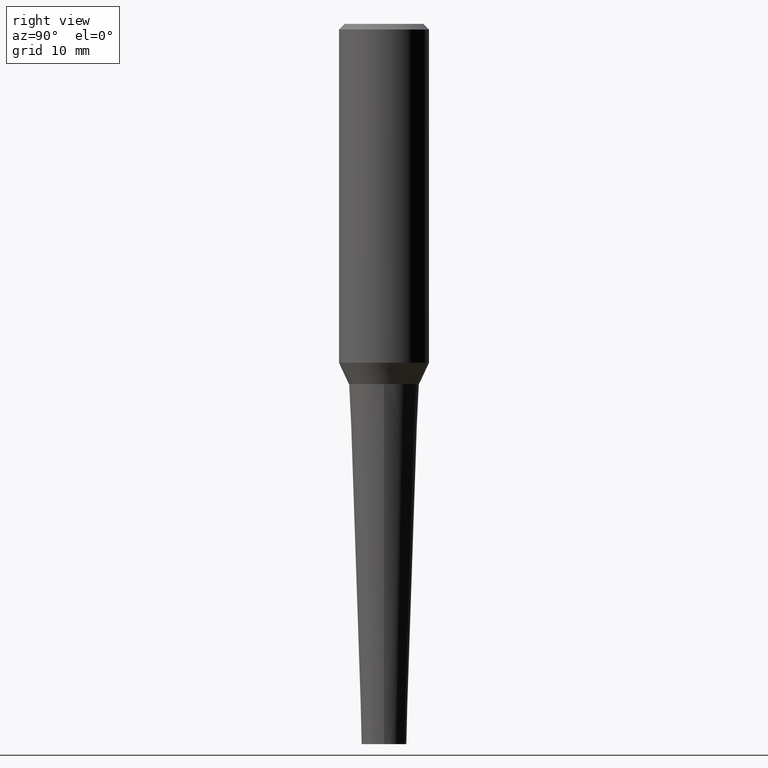
[diagram: clean part render]
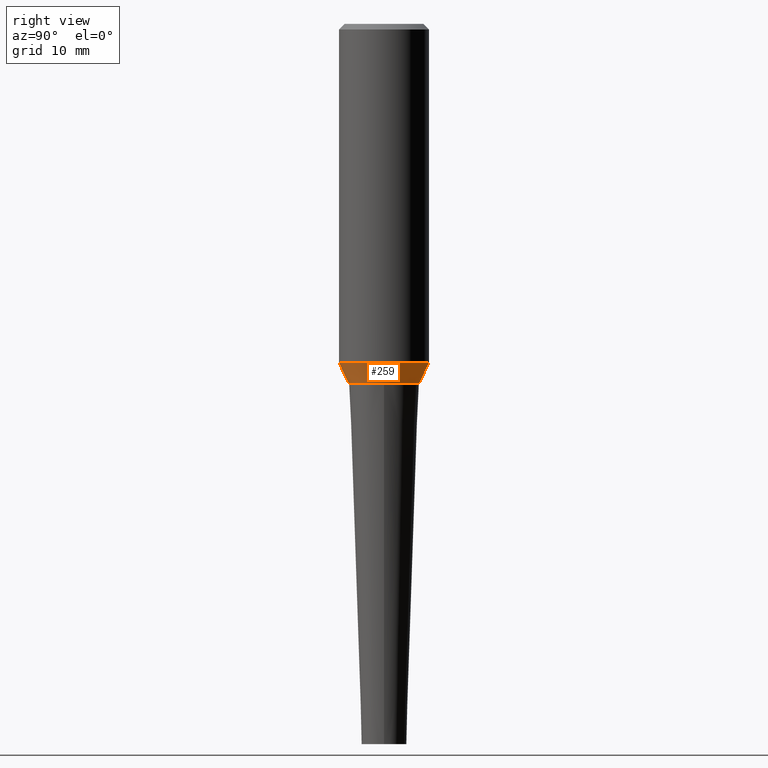
[diagram: same view with one face highlighted and labeled with its STEP entity id]
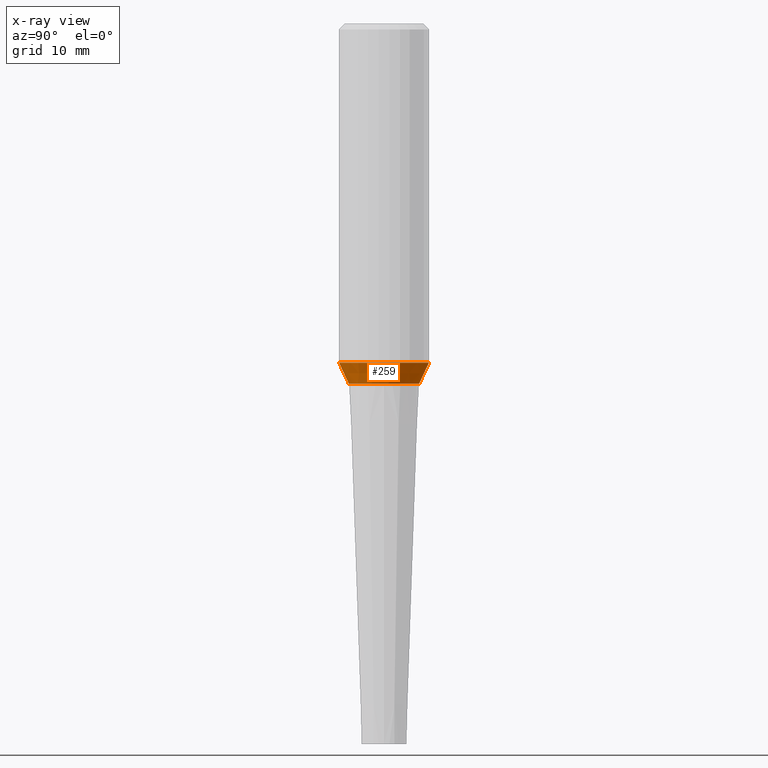
[diagram: x-ray of the same camera — body ghosted, the highlighted face saturated]
A machine part, right view. The second image highlights one B-rep face of the part: STEP entity #259.
The next image is the same camera in x-ray: the body ghosted, the highlighted face saturated — about 0% of this face is hidden behind the body in this view.
In plain terms, the highlighted conical surface has half-angle 25 deg.
Its self-contained STEP definition (entity closure, byte-faithful):
#1 = VERTEX_POINT ( 'NONE', #354 ) ;
#3 = DIRECTION ( 'NONE',  ( -6.982962677686265922E-15, -1.000000000000000000, 2.797900717145328369E-15 ) ) ;
#7 = EDGE_CURVE ( 'NONE', #1, #223, #412, .T. ) ;
#23 = DIRECTION ( 'NONE',  ( -2.651392540956904653E-29, 3.196586830198859134E-15, 1.000000000000000000 ) ) ;
#42 = CIRCLE ( 'NONE', #234, 0.1952784083383446168 ) ;
#53 = EDGE_CURVE ( 'NONE', #1, #68, #42, .T. ) ;
#65 = DIRECTION ( 'NONE',  ( -6.982962677686265922E-15, -1.000000000000000000, 3.278217592397117045E-15 ) ) ;
#68 = VERTEX_POINT ( 'NONE', #182 ) ;
#69 = DIRECTION ( 'NONE',  ( -2.651392540956904653E-29, 3.196586830198859134E-15, 1.000000000000000000 ) ) ;
#82 = CARTESIAN_POINT ( 'NONE',  ( 4.960502830647732035E-29, -6.876789300027791959E-15, -1.999063130645136521 ) ) ;
#104 = ORIENTED_EDGE ( 'NONE', *, *, #7, .F. ) ;
#136 = LINE ( 'NONE', #353, #142 ) ;
#142 = VECTOR ( 'NONE', #260, 39.37007874015748854 ) ;
#182 = CARTESIAN_POINT ( 'NONE',  ( 1.387536544956102545E-15, 0.1952784083383376779, -1.999063130645136965 ) ) ;
#184 = VECTOR ( 'NONE', #188, 39.37007874015748143 ) ;
#188 = DIRECTION ( 'NONE',  ( -2.951127548643988277E-15, -0.4226182617406985531, 0.9063077870366502697 ) ) ;
#210 = ORIENTED_EDGE ( 'NONE', *, *, #213, .T. ) ;
#213 = EDGE_CURVE ( 'NONE', #68, #287, #136, .T. ) ;
#223 = VERTEX_POINT ( 'NONE', #379 ) ;
#229 = AXIS2_PLACEMENT_3D ( 'NONE', #262, #69, #3 ) ;
#232 = CARTESIAN_POINT ( 'NONE',  ( 1.776356839400272947E-15, 0.2499999999999934497, -1.881712298625419999 ) ) ;
#234 = AXIS2_PLACEMENT_3D ( 'NONE', #82, #281, #250 ) ;
#250 = DIRECTION ( 'NONE',  ( -6.982962677686265922E-15, -1.000000000000000000, 2.797900717145328369E-15 ) ) ;
#251 = EDGE_CURVE ( 'NONE', #223, #287, #351, .T. ) ;
#259 = ADVANCED_FACE ( 'NONE', ( #297 ), #328, .T. ) ;
#260 = DIRECTION ( 'NONE',  ( 3.002883358794135962E-15, 0.4226182617407042708, 0.9063077870366476052 ) ) ;
#262 = CARTESIAN_POINT ( 'NONE',  ( 4.960502830647732035E-29, -6.876789300027791959E-15, -1.999063130645136521 ) ) ;
#263 = ORIENTED_EDGE ( 'NONE', *, *, #53, .T. ) ;
#281 = DIRECTION ( 'NONE',  ( -2.651392540956904653E-29, 3.196586830198859134E-15, 1.000000000000000000 ) ) ;
#282 = AXIS2_PLACEMENT_3D ( 'NONE', #349, #23, #65 ) ;
#284 = EDGE_LOOP ( 'NONE', ( #263, #210, #352, #104 ) ) ;
#287 = VERTEX_POINT ( 'NONE', #232 ) ;
#297 = FACE_OUTER_BOUND ( 'NONE', #284, .T. ) ;
#328 = CONICAL_SURFACE ( 'NONE', #229, 0.1952784083383446168, 0.4363323129985846038 ) ;
#349 = CARTESIAN_POINT ( 'NONE',  ( 4.649359709955567385E-29, -6.501667175880684624E-15, -1.881712298625419111 ) ) ;
#351 = CIRCLE ( 'NONE', #282, 0.2499999999999999167 ) ;
#352 = ORIENTED_EDGE ( 'NONE', *, *, #251, .F. ) ;
#353 = CARTESIAN_POINT ( 'NONE',  ( 1.387536544956102742E-15, 0.1952784083383377611, -1.999063130645136965 ) ) ;
#354 = CARTESIAN_POINT ( 'NONE',  ( -1.363621837184589866E-15, -0.1952784083383515557, -1.999063130645135855 ) ) ;
#356 = CARTESIAN_POINT ( 'NONE',  ( -1.363621837184589471E-15, -0.1952784083383514724, -1.999063130645135855 ) ) ;
#379 = CARTESIAN_POINT ( 'NONE',  ( -1.745740669421519346E-15, -0.2500000000000064393, -1.881712298625418445 ) ) ;
#412 = LINE ( 'NONE', #356, #184 ) ;